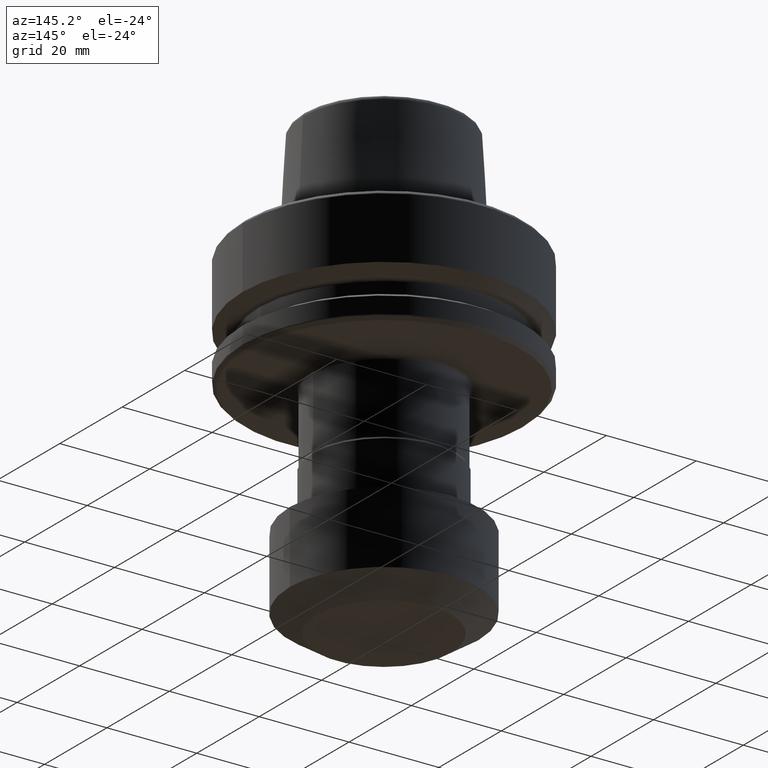
[diagram: clean part render]
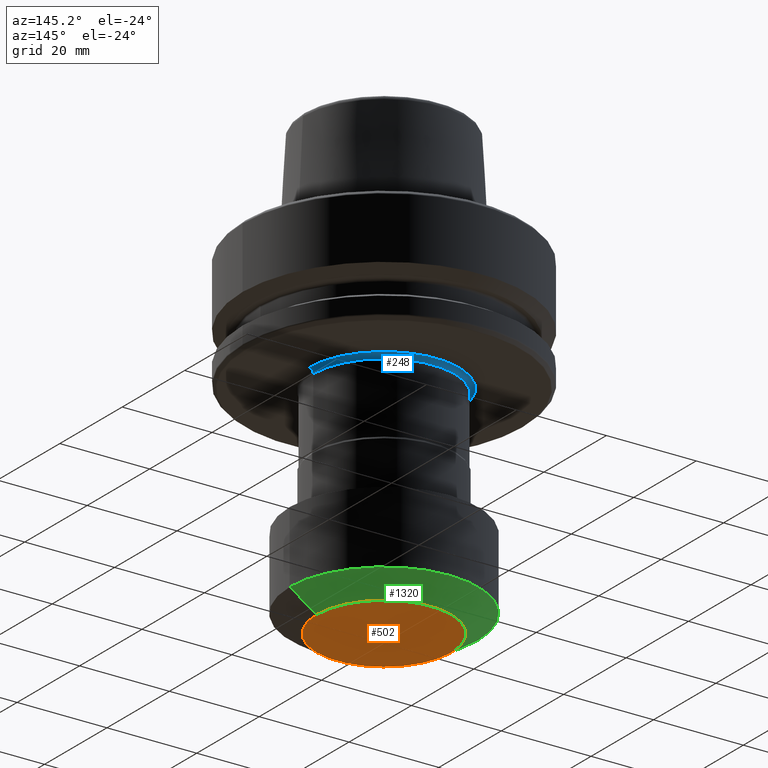
[diagram: same view with three faces highlighted in distinct colors, each labeled with its STEP entity id]
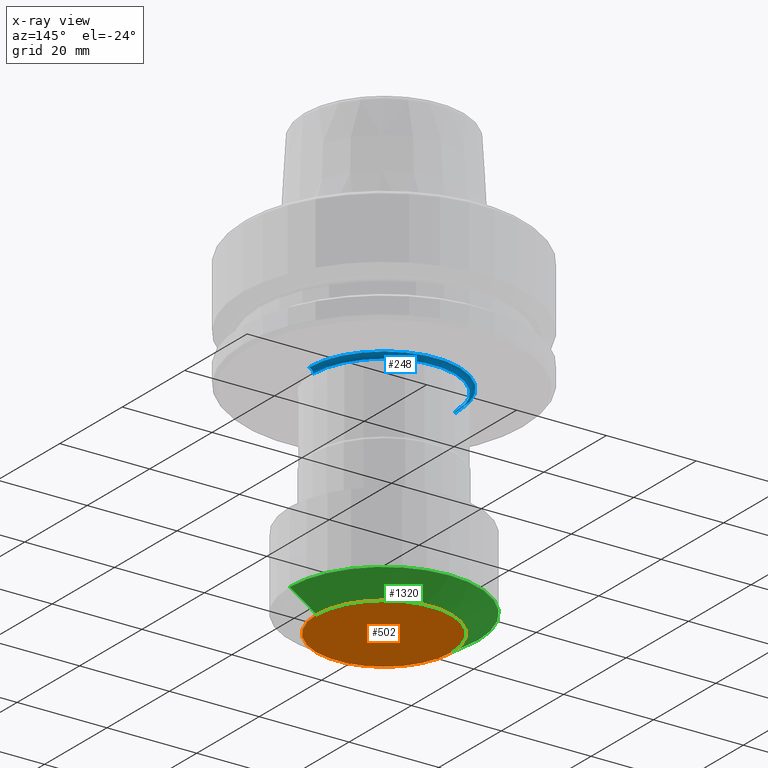
[diagram: x-ray of the same camera — body ghosted, the three highlighted faces saturated]
A machine part, auxiliary view with three faces highlighted in distinct colors.
The next image is the same camera in x-ray (body ghosted, the three faces saturated) — at least one of them is partly hidden behind the body in this view.
Their STEP definitions:

[orange] entity #502 — the highlighted planar face has unit normal (0, -0, 1).
#60 = DIRECTION ( 'NONE',  ( -0.0000000000000000000, -0.0000000000000000000, 1.000000000000000000 ) ) ;
#92 = FACE_OUTER_BOUND ( 'NONE', #284, .T. ) ;
#152 = CIRCLE ( 'NONE', #159, 15.00000000000000000 ) ;
#159 = AXIS2_PLACEMENT_3D ( 'NONE', #1475, #1160, #1382 ) ;
#182 = EDGE_CURVE ( 'NONE', #518, #924, #241, .T. ) ;
#241 = CIRCLE ( 'NONE', #724, 15.00000000000000000 ) ;
#284 = EDGE_LOOP ( 'NONE', ( #911, #1181 ) ) ;
#446 = EDGE_CURVE ( 'NONE', #924, #518, #152, .T. ) ;
#463 = DIRECTION ( 'NONE',  ( 1.000000000000000000, 0.0000000000000000000, 0.0000000000000000000 ) ) ;
#488 = DIRECTION ( 'NONE',  ( 1.000000000000000000, 0.0000000000000000000, 0.0000000000000000000 ) ) ;
#502 = ADVANCED_FACE ( 'NONE', ( #92 ), #1088, .F. ) ;
#518 = VERTEX_POINT ( 'NONE', #1147 ) ;
#632 = CARTESIAN_POINT ( 'NONE',  ( 0.0000000000000000000, 0.0000000000000000000, -80.00000000000000000 ) ) ;
#724 = AXIS2_PLACEMENT_3D ( 'NONE', #1143, #60, #488 ) ;
#880 = AXIS2_PLACEMENT_3D ( 'NONE', #632, #1483, #463 ) ;
#911 = ORIENTED_EDGE ( 'NONE', *, *, #182, .F. ) ;
#924 = VERTEX_POINT ( 'NONE', #1336 ) ;
#1088 = PLANE ( 'NONE',  #880 ) ;
#1143 = CARTESIAN_POINT ( 'NONE',  ( 0.0000000000000000000, 0.0000000000000000000, -80.00000000000000000 ) ) ;
#1147 = CARTESIAN_POINT ( 'NONE',  ( 15.00000000000000000, 0.0000000000000000000, -80.00000000000000000 ) ) ;
#1160 = DIRECTION ( 'NONE',  ( -0.0000000000000000000, -0.0000000000000000000, 1.000000000000000000 ) ) ;
#1181 = ORIENTED_EDGE ( 'NONE', *, *, #446, .F. ) ;
#1336 = CARTESIAN_POINT ( 'NONE',  ( -15.00000000000000000, 2.204364238465235400E-015, -80.00000000000000000 ) ) ;
#1382 = DIRECTION ( 'NONE',  ( 1.000000000000000000, 0.0000000000000000000, 0.0000000000000000000 ) ) ;
#1475 = CARTESIAN_POINT ( 'NONE',  ( 0.0000000000000000000, 0.0000000000000000000, -80.00000000000000000 ) ) ;
#1483 = DIRECTION ( 'NONE',  ( 0.0000000000000000000, -0.0000000000000000000, 1.000000000000000000 ) ) ;

[blue] entity #248 — the highlighted toroidal blend (fillet) surface has major radius 16.75 mm and minor (blend) radius 1 mm.
#134 = EDGE_CURVE ( 'NONE', #588, #195, #490, .T. ) ;
#142 = CARTESIAN_POINT ( 'NONE',  ( -16.74999999999999600, 0.0000000000000000000, -31.00000000000001100 ) ) ;
#189 = EDGE_LOOP ( 'NONE', ( #527, #1356, #481, #1414 ) ) ;
#195 = VERTEX_POINT ( 'NONE', #142 ) ;
#248 = ADVANCED_FACE ( 'NONE', ( #874 ), #1107, .F. ) ;
#262 = EDGE_CURVE ( 'NONE', #959, #195, #768, .T. ) ;
#285 = DIRECTION ( 'NONE',  ( 0.0000000000000000000, 0.0000000000000000000, -1.000000000000000000 ) ) ;
#333 = AXIS2_PLACEMENT_3D ( 'NONE', #838, #543, #1292 ) ;
#404 = AXIS2_PLACEMENT_3D ( 'NONE', #957, #1159, #758 ) ;
#481 = ORIENTED_EDGE ( 'NONE', *, *, #262, .T. ) ;
#490 = CIRCLE ( 'NONE', #404, 16.74999999999999600 ) ;
#506 = CARTESIAN_POINT ( 'NONE',  ( 0.0000000000000000000, 0.0000000000000000000, -32.00000000000001400 ) ) ;
#527 = ORIENTED_EDGE ( 'NONE', *, *, #916, .F. ) ;
#543 = DIRECTION ( 'NONE',  ( -1.224646799147353200E-016, 1.000000000000000000, 0.0000000000000000000 ) ) ;
#588 = VERTEX_POINT ( 'NONE', #1479 ) ;
#664 = DIRECTION ( 'NONE',  ( 0.0000000000000000000, 0.0000000000000000000, -1.000000000000000000 ) ) ;
#670 = VERTEX_POINT ( 'NONE', #1400 ) ;
#687 = DIRECTION ( 'NONE',  ( -1.000000000000000000, 0.0000000000000000000, 0.0000000000000000000 ) ) ;
#705 = DIRECTION ( 'NONE',  ( 0.0000000000000000000, 0.0000000000000000000, -1.000000000000000000 ) ) ;
#736 = AXIS2_PLACEMENT_3D ( 'NONE', #1043, #664, #687 ) ;
#758 = DIRECTION ( 'NONE',  ( -1.000000000000000000, 0.0000000000000000000, 0.0000000000000000000 ) ) ;
#768 = CIRCLE ( 'NONE', #1367, 1.000000000000000900 ) ;
#838 = CARTESIAN_POINT ( 'NONE',  ( 16.74999999999999600, 2.051283388571816500E-015, -32.00000000000001400 ) ) ;
#874 = FACE_OUTER_BOUND ( 'NONE', #189, .T. ) ;
#916 = EDGE_CURVE ( 'NONE', #670, #588, #1208, .T. ) ;
#948 = EDGE_CURVE ( 'NONE', #959, #670, #1239, .T. ) ;
#957 = CARTESIAN_POINT ( 'NONE',  ( 0.0000000000000000000, 0.0000000000000000000, -31.00000000000000700 ) ) ;
#959 = VERTEX_POINT ( 'NONE', #1355 ) ;
#978 = CARTESIAN_POINT ( 'NONE',  ( -16.74999999999999600, 0.0000000000000000000, -32.00000000000001400 ) ) ;
#1043 = CARTESIAN_POINT ( 'NONE',  ( 0.0000000000000000000, 0.0000000000000000000, -32.00000000000001400 ) ) ;
#1076 = DIRECTION ( 'NONE',  ( -1.000000000000000000, 0.0000000000000000000, 0.0000000000000000000 ) ) ;
#1107 = TOROIDAL_SURFACE ( 'NONE', #1284, 16.74999999999999600, 1.000000000000000000 ) ;
#1159 = DIRECTION ( 'NONE',  ( -0.0000000000000000000, -0.0000000000000000000, 1.000000000000000000 ) ) ;
#1208 = CIRCLE ( 'NONE', #333, 1.000000000000000900 ) ;
#1239 = CIRCLE ( 'NONE', #736, 15.74999999999999600 ) ;
#1284 = AXIS2_PLACEMENT_3D ( 'NONE', #506, #705, #1076 ) ;
#1292 = DIRECTION ( 'NONE',  ( -1.000000000000000000, -1.224646799147353500E-016, 0.0000000000000000000 ) ) ;
#1355 = CARTESIAN_POINT ( 'NONE',  ( -15.74999999999999600, 1.928818708657081000E-015, -32.00000000000001400 ) ) ;
#1356 = ORIENTED_EDGE ( 'NONE', *, *, #948, .F. ) ;
#1367 = AXIS2_PLACEMENT_3D ( 'NONE', #978, #1501, #285 ) ;
#1400 = CARTESIAN_POINT ( 'NONE',  ( 15.74999999999999600, 0.0000000000000000000, -32.00000000000001400 ) ) ;
#1414 = ORIENTED_EDGE ( 'NONE', *, *, #134, .F. ) ;
#1479 = CARTESIAN_POINT ( 'NONE',  ( 16.74999999999999600, 2.051283388571816100E-015, -31.00000000000001100 ) ) ;
#1501 = DIRECTION ( 'NONE',  ( -0.0000000000000000000, -1.000000000000000000, -0.0000000000000000000 ) ) ;

[green] entity #1320 — the highlighted conical surface has half-angle 56.31 deg.
#30 = ORIENTED_EDGE ( 'NONE', *, *, #747, .T. ) ;
#60 = DIRECTION ( 'NONE',  ( -0.0000000000000000000, -0.0000000000000000000, 1.000000000000000000 ) ) ;
#71 = CARTESIAN_POINT ( 'NONE',  ( 0.0000000000000000000, 0.0000000000000000000, -76.00000000000000000 ) ) ;
#78 = ORIENTED_EDGE ( 'NONE', *, *, #182, .T. ) ;
#100 = DIRECTION ( 'NONE',  ( 1.000000000000000000, 0.0000000000000000000, 0.0000000000000000000 ) ) ;
#182 = EDGE_CURVE ( 'NONE', #518, #924, #241, .T. ) ;
#190 = DIRECTION ( 'NONE',  ( 1.000000000000000000, 0.0000000000000000000, 0.0000000000000000000 ) ) ;
#223 = DIRECTION ( 'NONE',  ( -0.8320502943378435000, 1.018967729690453200E-016, 0.5547001962252292600 ) ) ;
#241 = CIRCLE ( 'NONE', #724, 15.00000000000000000 ) ;
#292 = VECTOR ( 'NONE', #538, 1000.000000000000100 ) ;
#308 = FACE_OUTER_BOUND ( 'NONE', #885, .T. ) ;
#420 = CARTESIAN_POINT ( 'NONE',  ( 21.00000000000000000, 0.0000000000000000000, -76.00000000000000000 ) ) ;
#488 = DIRECTION ( 'NONE',  ( 1.000000000000000000, 0.0000000000000000000, 0.0000000000000000000 ) ) ;
#518 = VERTEX_POINT ( 'NONE', #1147 ) ;
#538 = DIRECTION ( 'NONE',  ( 0.8320502943378435000, 0.0000000000000000000, 0.5547001962252292600 ) ) ;
#686 = VECTOR ( 'NONE', #223, 1000.000000000000100 ) ;
#720 = CIRCLE ( 'NONE', #777, 21.00000000000000000 ) ;
#724 = AXIS2_PLACEMENT_3D ( 'NONE', #1143, #60, #488 ) ;
#747 = EDGE_CURVE ( 'NONE', #924, #881, #1466, .T. ) ;
#777 = AXIS2_PLACEMENT_3D ( 'NONE', #71, #910, #190 ) ;
#809 = AXIS2_PLACEMENT_3D ( 'NONE', #1283, #909, #100 ) ;
#821 = ORIENTED_EDGE ( 'NONE', *, *, #1491, .F. ) ;
#881 = VERTEX_POINT ( 'NONE', #1365 ) ;
#885 = EDGE_LOOP ( 'NONE', ( #78, #30, #1269, #821 ) ) ;
#909 = DIRECTION ( 'NONE',  ( -0.0000000000000000000, -0.0000000000000000000, 1.000000000000000000 ) ) ;
#910 = DIRECTION ( 'NONE',  ( -0.0000000000000000000, -0.0000000000000000000, 1.000000000000000000 ) ) ;
#924 = VERTEX_POINT ( 'NONE', #1336 ) ;
#964 = CARTESIAN_POINT ( 'NONE',  ( -15.00000000000000000, 1.836970198721029600E-015, -80.00000000000000000 ) ) ;
#1094 = LINE ( 'NONE', #1148, #292 ) ;
#1143 = CARTESIAN_POINT ( 'NONE',  ( 0.0000000000000000000, 0.0000000000000000000, -80.00000000000000000 ) ) ;
#1147 = CARTESIAN_POINT ( 'NONE',  ( 15.00000000000000000, 0.0000000000000000000, -80.00000000000000000 ) ) ;
#1148 = CARTESIAN_POINT ( 'NONE',  ( 15.00000000000000000, 0.0000000000000000000, -80.00000000000000000 ) ) ;
#1244 = CONICAL_SURFACE ( 'NONE', #809, 15.00000000000000000, 0.9827937232473288300 ) ;
#1269 = ORIENTED_EDGE ( 'NONE', *, *, #1493, .F. ) ;
#1283 = CARTESIAN_POINT ( 'NONE',  ( 0.0000000000000000000, 0.0000000000000000000, -80.00000000000000000 ) ) ;
#1320 = ADVANCED_FACE ( 'NONE', ( #308 ), #1244, .T. ) ;
#1336 = CARTESIAN_POINT ( 'NONE',  ( -15.00000000000000000, 2.204364238465235400E-015, -80.00000000000000000 ) ) ;
#1365 = CARTESIAN_POINT ( 'NONE',  ( -21.00000000000000000, 2.571758278209441700E-015, -76.00000000000000000 ) ) ;
#1466 = LINE ( 'NONE', #964, #686 ) ;
#1491 = EDGE_CURVE ( 'NONE', #518, #1507, #1094, .T. ) ;
#1493 = EDGE_CURVE ( 'NONE', #1507, #881, #720, .T. ) ;
#1507 = VERTEX_POINT ( 'NONE', #420 ) ;